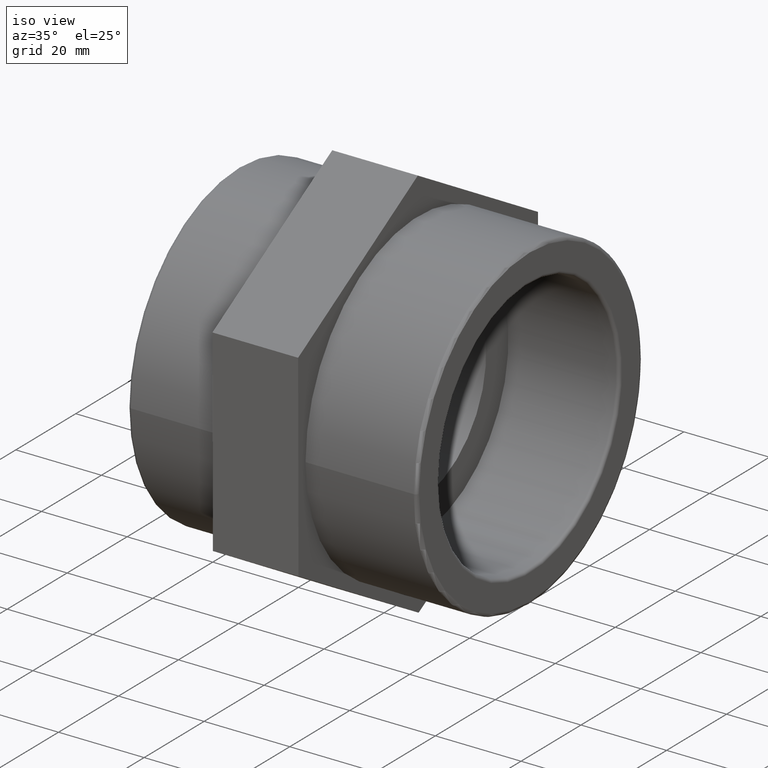
[diagram: clean part render]
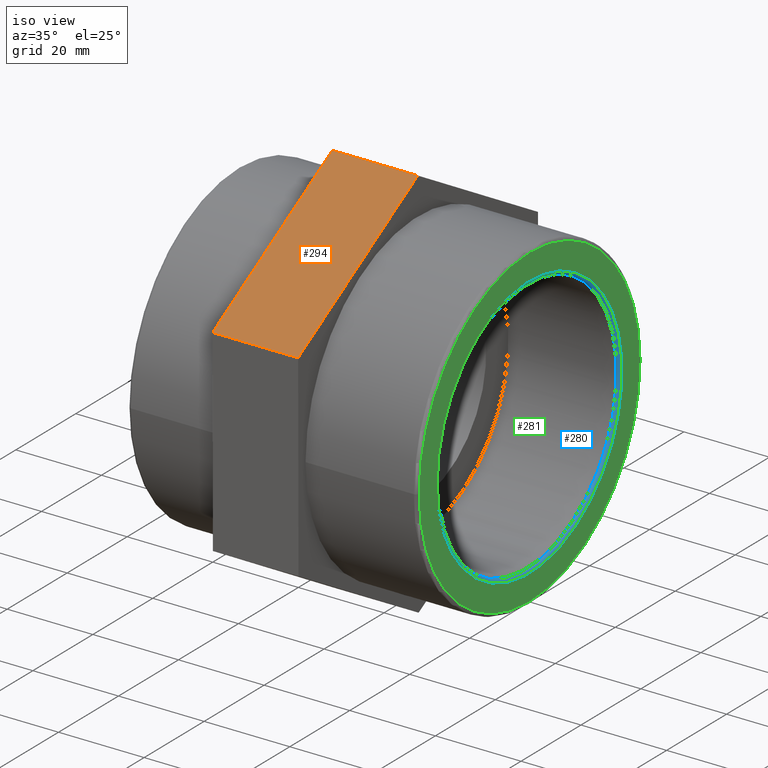
[diagram: same view with three faces highlighted in distinct colors, each labeled with its STEP entity id]
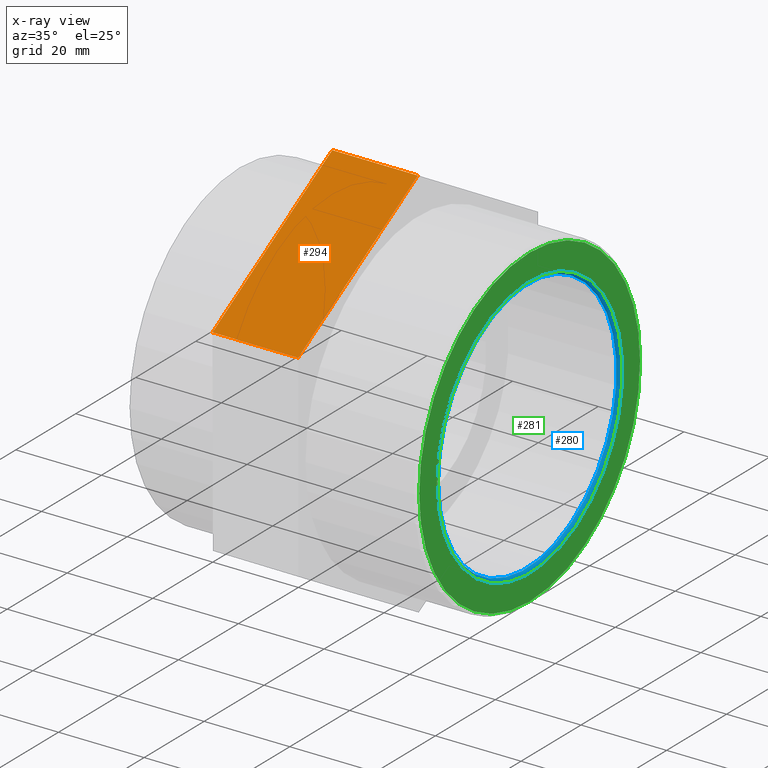
[diagram: x-ray of the same camera — body ghosted, the three highlighted faces saturated]
A machine part, iso view with three faces highlighted in distinct colors.
The next image is the same camera in x-ray (body ghosted, the three faces saturated) — at least one of them is partly hidden behind the body in this view.
Their STEP definitions:

[orange] entity #294 — the highlighted planar face has unit normal (0, -0.5026, 0.8645).
#18=LINE('',#471,#36);
#26=LINE('',#489,#44);
#29=LINE('',#494,#47);
#30=LINE('',#495,#48);
#36=VECTOR('',#389,20.);
#44=VECTOR('',#403,20.);
#47=VECTOR('',#408,46.18802153517);
#48=VECTOR('',#409,46.18802153517);
#62=PLANE('',#329);
#97=FACE_OUTER_BOUND('',#128,.T.);
#128=EDGE_LOOP('',(#248,#249,#250,#251));
#166=VERTEX_POINT('',#464);
#169=VERTEX_POINT('',#469);
#175=VERTEX_POINT('',#486);
#176=VERTEX_POINT('',#488);
#195=EDGE_CURVE('',#169,#166,#18,.T.);
#203=EDGE_CURVE('',#176,#175,#26,.T.);
#206=EDGE_CURVE('',#175,#166,#29,.T.);
#207=EDGE_CURVE('',#169,#176,#30,.T.);
#248=ORIENTED_EDGE('',*,*,#206,.T.);
#249=ORIENTED_EDGE('',*,*,#195,.F.);
#250=ORIENTED_EDGE('',*,*,#207,.T.);
#251=ORIENTED_EDGE('',*,*,#203,.T.);
#294=ADVANCED_FACE('',(#97),#62,.T.);
#329=AXIS2_PLACEMENT_3D('',#493,#406,#407);
#389=DIRECTION('',(-1.,-1.48029736616687E-16,0.));
#403=DIRECTION('',(-1.,-1.48029736616687E-16,0.));
#406=DIRECTION('center_axis',(7.4394421935113E-17,-0.50256403635813,0.864539987137335));
#407=DIRECTION('ref_axis',(-1.77635683940025E-16,0.864539987137335,0.50256403635813));
#408=DIRECTION('',(1.58813419197395E-16,-0.864539987137336,-0.50256403635813));
#409=DIRECTION('',(-1.58813419197395E-16,0.864539987137336,0.50256403635813));
#464=CARTESIAN_POINT('',(-12.,-40.0682572262826,22.9753802184378));
#469=CARTESIAN_POINT('',(8.00000000000002,-40.0682572262826,22.9753802184378));
#471=CARTESIAN_POINT('',(8.00000000000002,-40.0682572262826,22.9753802184378));
#486=CARTESIAN_POINT('',(-12.,-0.136865682367751,46.187818752549));
#488=CARTESIAN_POINT('',(8.00000000000001,-0.136865682367748,46.187818752549));
#489=CARTESIAN_POINT('',(8.00000000000001,-0.136865682367748,46.187818752549));
#493=CARTESIAN_POINT('Origin',(8.00000000000002,-40.0682572262826,22.9753802184378));
#494=CARTESIAN_POINT('',(-12.,-30.0854093403039,28.7784898519656));
#495=CARTESIAN_POINT('',(8.00000000000002,-40.0682572262826,22.9753802184378));

[blue] entity #280 — the highlighted toroidal blend (fillet) surface has major radius 30.8254 mm and minor (blend) radius 0.7518 mm.
#68=FACE_BOUND('',#105,.T.);
#83=FACE_OUTER_BOUND('',#104,.T.);
#104=EDGE_LOOP('',(#212));
#105=EDGE_LOOP('',(#213));
#140=CIRCLE('',#304,30.0736);
#141=CIRCLE('',#305,30.82544);
#154=VERTEX_POINT('',#430);
#155=VERTEX_POINT('',#432);
#180=EDGE_CURVE('',#154,#154,#140,.T.);
#181=EDGE_CURVE('',#155,#155,#141,.T.);
#212=ORIENTED_EDGE('',*,*,#180,.T.);
#213=ORIENTED_EDGE('',*,*,#181,.T.);
#276=TOROIDAL_SURFACE('',#303,30.82544,0.75184);
#280=ADVANCED_FACE('',(#83,#68),#276,.T.);
#303=AXIS2_PLACEMENT_3D('',#429,#340,#341);
#304=AXIS2_PLACEMENT_3D('',#431,#342,#343);
#305=AXIS2_PLACEMENT_3D('',#433,#344,#345);
#340=DIRECTION('center_axis',(-1.,-1.83697019872103E-16,0.));
#341=DIRECTION('ref_axis',(0.,0.,1.));
#342=DIRECTION('center_axis',(-1.,-1.83697019872103E-16,0.));
#343=DIRECTION('ref_axis',(-1.84584323896234E-16,1.,6.12323399573677E-17));
#344=DIRECTION('center_axis',(1.,1.83697019872103E-16,0.));
#345=DIRECTION('ref_axis',(-1.83697019872103E-16,1.,6.12323399573676E-17));
#429=CARTESIAN_POINT('Origin',(33.24816,1.23532865838824E-14,0.));
#430=CARTESIAN_POINT('',(33.24816,-30.0736,1.84147689894189E-15));
#431=CARTESIAN_POINT('Origin',(33.24816,1.23532865838824E-14,0.));
#432=CARTESIAN_POINT('',(34.,-30.82544,-5.66254146424632E-15));
#433=CARTESIAN_POINT('Origin',(34.,1.2491397351303E-14,0.));

[green] entity #281 — the highlighted planar face has unit normal (1, 0, 0).
#56=PLANE('',#306);
#69=FACE_BOUND('',#107,.T.);
#84=FACE_OUTER_BOUND('',#106,.T.);
#106=EDGE_LOOP('',(#214));
#107=EDGE_LOOP('',(#215));
#141=CIRCLE('',#305,30.82544);
#142=CIRCLE('',#307,36.84016);
#155=VERTEX_POINT('',#432);
#156=VERTEX_POINT('',#435);
#181=EDGE_CURVE('',#155,#155,#141,.T.);
#182=EDGE_CURVE('',#156,#156,#142,.T.);
#214=ORIENTED_EDGE('',*,*,#182,.F.);
#215=ORIENTED_EDGE('',*,*,#181,.F.);
#281=ADVANCED_FACE('',(#84,#69),#56,.T.);
#305=AXIS2_PLACEMENT_3D('',#433,#344,#345);
#306=AXIS2_PLACEMENT_3D('',#434,#346,#347);
#307=AXIS2_PLACEMENT_3D('',#436,#348,#349);
#344=DIRECTION('center_axis',(1.,1.83697019872103E-16,0.));
#345=DIRECTION('ref_axis',(-1.83697019872103E-16,1.,6.12323399573676E-17));
#346=DIRECTION('center_axis',(1.,1.83697019872103E-16,0.));
#347=DIRECTION('ref_axis',(0.,0.,-1.));
#348=DIRECTION('center_axis',(-1.,-1.83697019872103E-16,0.));
#349=DIRECTION('ref_axis',(-1.83697019872103E-16,1.,6.12323399573677E-17));
#432=CARTESIAN_POINT('',(34.,-30.82544,-5.66254146424632E-15));
#433=CARTESIAN_POINT('Origin',(34.,1.2491397351303E-14,0.));
#434=CARTESIAN_POINT('Origin',(34.,-37.592,0.));
#435=CARTESIAN_POINT('',(34.,-36.84016,2.25580920120382E-15));
#436=CARTESIAN_POINT('Origin',(34.,1.2491397351303E-14,0.));